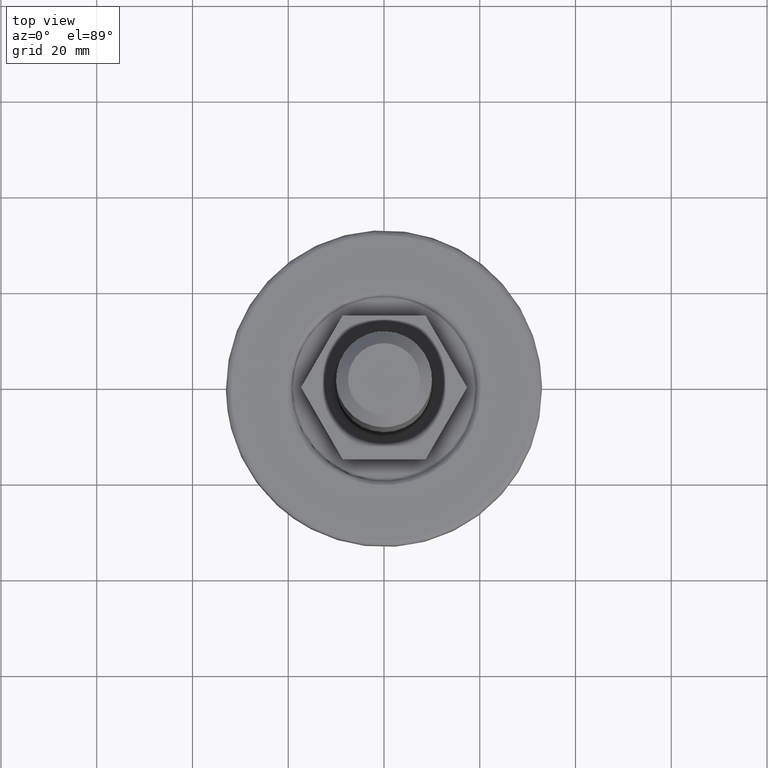
[diagram: clean part render]
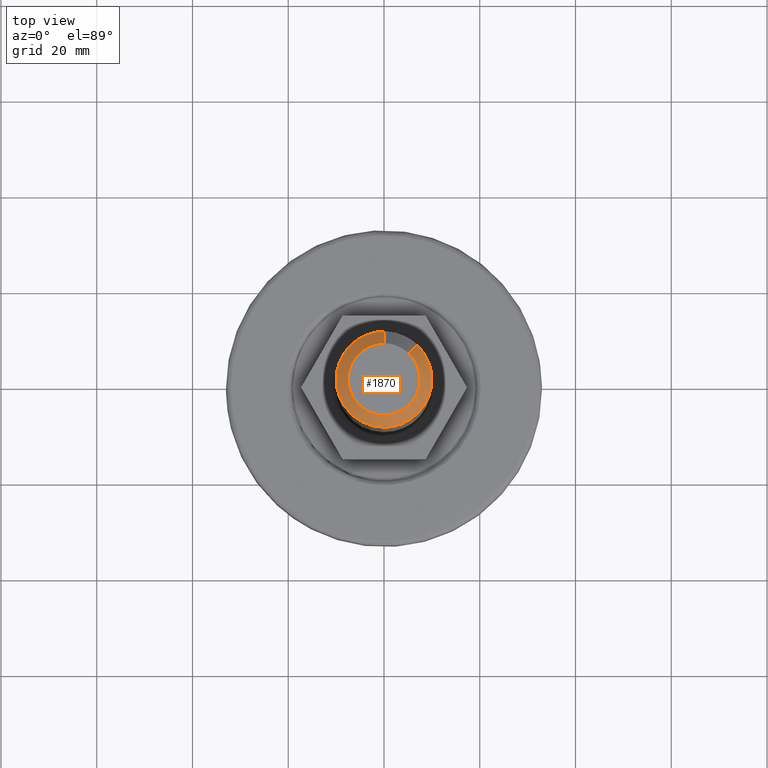
[diagram: same view with one face highlighted and labeled with its STEP entity id]
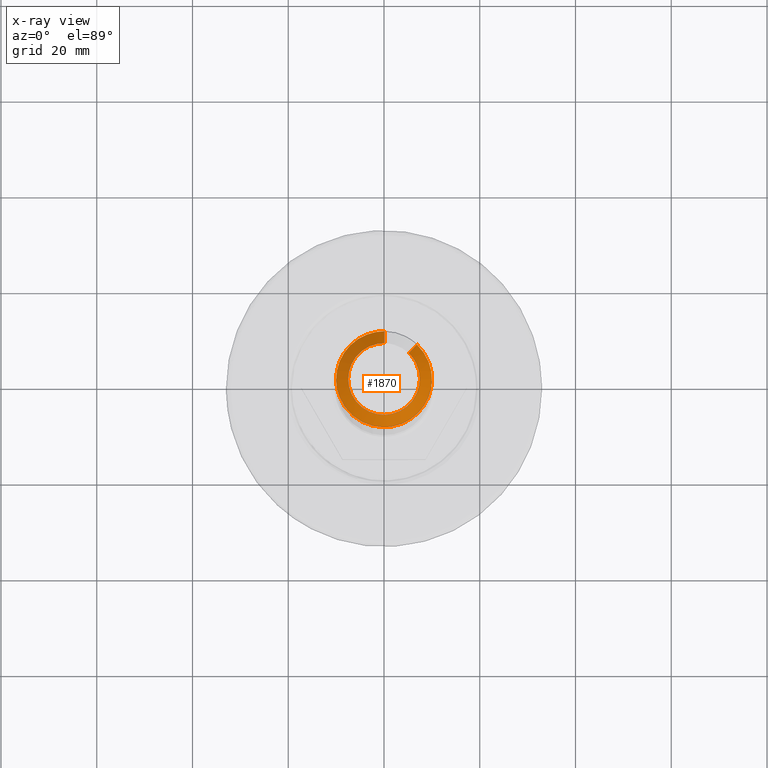
[diagram: x-ray of the same camera — body ghosted, the highlighted face saturated]
A machine part, top view. The second image highlights one B-rep face of the part: STEP entity #1870.
The next image is the same camera in x-ray: the body ghosted, the highlighted face saturated — about 0% of this face is hidden behind the body in this view.
In plain terms, the highlighted face is a freeform B-spline surface patch.
Its self-contained STEP definition (entity closure, byte-faithful):
#1700=CARTESIAN_POINT('',(5.129191868205468,5.385888694462097,121.062500000000010));
#1701=CARTESIAN_POINT('',(7.465369323917905,3.161055786042344,121.062500000000070));
#1702=CARTESIAN_POINT('',(7.437216802789756,-0.064903607769156,121.062500000000000));
#1703=CARTESIAN_POINT('',(7.372313195020600,-7.502120410558912,121.062500000000010));
#1704=CARTESIAN_POINT('',(-0.064903607769156,-7.437216802789756,121.062500000000000));
#1705=CARTESIAN_POINT('',(-7.502120410558912,-7.372313195020600,121.062500000000010));
#1706=CARTESIAN_POINT('',(-7.437216802789756,0.064903607769156,121.062500000000000));
#1707=CARTESIAN_POINT('',(-7.372313195020600,7.502120410558912,121.062500000000010));
#1708=CARTESIAN_POINT('',(0.064903607769156,7.437216802789756,121.062500000000000));
#1709=CARTESIAN_POINT('',(6.940572441830194,7.287922075846782,118.435937499999980));
#1710=CARTESIAN_POINT('',(10.101773910789007,4.277386621407338,118.435937500000020));
#1711=CARTESIAN_POINT('',(10.063679291338079,-0.087824398664104,118.435937499999990));
#1712=CARTESIAN_POINT('',(9.975854892673976,-10.151503690002183,118.435937499999980));
#1713=CARTESIAN_POINT('',(-0.087824398664104,-10.063679291338079,118.435937499999990));
#1714=CARTESIAN_POINT('',(-10.151503690002183,-9.975854892673976,118.435937499999980));
#1715=CARTESIAN_POINT('',(-10.063679291338079,0.087824398664104,118.435937499999990));
#1716=CARTESIAN_POINT('',(-9.975854892673976,10.151503690002183,118.435937499999980));
#1717=CARTESIAN_POINT('',(0.087824398664104,10.063679291338079,118.435937499999990));
#1725=(BOUNDED_SURFACE()B_SPLINE_SURFACE(2,1,((#1700,#1709),(#1701,#1710),(#1702,#1711),(#1703,#1712),(#1704,#1713),(#1705,#1714),(#1706,#1715),(#1707,#1716),(#1708,#1717)),.UNSPECIFIED.,.F.,.F.,.U.)B_SPLINE_SURFACE_WITH_KNOTS((3,2,2,2,3),(2,2),(0.0,8.670836054546653,25.345520774828671,42.020205495110687,58.694890215392718),(0.0,3.714520309920668),.UNSPECIFIED.)GEOMETRIC_REPRESENTATION_ITEM()RATIONAL_B_SPLINE_SURFACE(((0.853787705168325,0.853787705168325),(0.847695526217005,0.847695526217005),(1.0,1.0),(0.707106781186548,0.707106781186548),(1.0,1.0),(0.707106781186548,0.707106781186548),(1.0,1.0),(0.707106781186548,0.707106781186548),(1.0,1.0)))REPRESENTATION_ITEM('')SURFACE());
#1726=CARTESIAN_POINT('',(7.500000000000000,0.0,121.0));
#1727=VERTEX_POINT('',#1726);
#1728=CARTESIAN_POINT('',(5.172294320882055,5.431148263320713,121.0));
#1729=VERTEX_POINT('',#1728);
#1730=CARTESIAN_POINT('',(7.500000000000000,0.0,121.0));
#1731=CARTESIAN_POINT('',(7.500000000000000,3.214383358170244,120.999999999999940));
#1732=CARTESIAN_POINT('',(5.172294320882055,5.431148263320713,120.999999999999960));
#1740=(BOUNDED_CURVE()B_SPLINE_CURVE(2,(#1730,#1731,#1732),.UNSPECIFIED.,.F.,.U.)B_SPLINE_CURVE_WITH_KNOTS((3,3),(0.500000000000000,0.628682976150349),.UNSPECIFIED.)CURVE()GEOMETRIC_REPRESENTATION_ITEM()RATIONAL_B_SPLINE_CURVE((1.0,0.849238515635318,0.853680523245769))REPRESENTATION_ITEM(''));
#1741=EDGE_CURVE('',#1727,#1729,#1740,.T.);
#1742=ORIENTED_EDGE('',*,*,#1741,.F.);
#1743=CARTESIAN_POINT('',(-7.500000000000000,0.0,121.0));
#1744=VERTEX_POINT('',#1743);
#1745=CARTESIAN_POINT('',(-7.500000000000000,0.0,121.0));
#1746=CARTESIAN_POINT('',(-7.500000000000000,-7.500000000000000,121.0));
#1747=CARTESIAN_POINT('',(0.0,-7.500000000000000,121.0));
#1748=CARTESIAN_POINT('',(7.500000000000000,-7.500000000000000,121.0));
#1749=CARTESIAN_POINT('',(7.500000000000000,0.0,121.0));
#1757=(BOUNDED_CURVE()B_SPLINE_CURVE(2,(#1745,#1746,#1747,#1748,#1749),.UNSPECIFIED.,.F.,.U.)B_SPLINE_CURVE_WITH_KNOTS((3,2,3),(0.0,0.250000000000000,0.500000000000000),.UNSPECIFIED.)CURVE()GEOMETRIC_REPRESENTATION_ITEM()RATIONAL_B_SPLINE_CURVE((1.0,0.707106781186547,1.0,0.707106781186547,1.0))REPRESENTATION_ITEM(''));
#1758=EDGE_CURVE('',#1744,#1727,#1757,.T.);
#1759=ORIENTED_EDGE('',*,*,#1758,.F.);
#1760=CARTESIAN_POINT('',(0.065449016864621,7.499714423061231,120.999999999914610));
#1761=VERTEX_POINT('',#1760);
#1762=CARTESIAN_POINT('',(0.065449016864621,7.499714423061231,120.999999999914540));
#1763=CARTESIAN_POINT('',(0.032725131781369,7.500000000000000,121.000000000000040));
#1764=CARTESIAN_POINT('',(0.0,7.500000000000000,121.0));
#1765=CARTESIAN_POINT('',(-7.500000000000000,7.500000000000000,121.0));
#1766=CARTESIAN_POINT('',(-7.500000000000000,0.0,121.0));
#1774=(BOUNDED_CURVE()B_SPLINE_CURVE(2,(#1762,#1763,#1764,#1765,#1766),.UNSPECIFIED.,.F.,.U.)B_SPLINE_CURVE_WITH_KNOTS((3,2,3),(0.748460105635604,0.750000000000000,1.0),.UNSPECIFIED.)CURVE()GEOMETRIC_REPRESENTATION_ITEM()RATIONAL_B_SPLINE_CURVE((0.996414028032346,0.998195901531918,1.0,0.707106781186547,1.0))REPRESENTATION_ITEM(''));
#1775=EDGE_CURVE('',#1761,#1744,#1774,.T.);
#1776=ORIENTED_EDGE('',*,*,#1775,.F.);
#1777=CARTESIAN_POINT('',(0.087265355389125,9.999619230693483,118.499999999944710));
#1778=VERTEX_POINT('',#1777);
#1779=CARTESIAN_POINT('',(0.065449016864621,7.499714423061231,120.999999999914610));
#1780=CARTESIAN_POINT('',(0.087265355389125,9.999619230693483,118.499999999944710));
#1781=QUASI_UNIFORM_CURVE('',1,(#1779,#1780),.UNSPECIFIED.,.F.,.U.);
#1782=EDGE_CURVE('',#1761,#1778,#1781,.T.);
#1783=ORIENTED_EDGE('',*,*,#1782,.T.);
#1784=CARTESIAN_POINT('',(-10.0,0.0,118.500000000000000));
#1785=VERTEX_POINT('',#1784);
#1786=CARTESIAN_POINT('',(-10.0,0.0,118.500000000000000));
#1787=CARTESIAN_POINT('',(-10.000000000000002,10.000000000000002,118.500000000000000));
#1788=CARTESIAN_POINT('',(0.0,10.0,118.500000000000000));
#1789=CARTESIAN_POINT('',(0.043633508611914,10.000000000000002,118.499999999999960));
#1790=CARTESIAN_POINT('',(0.087265355389125,9.999619230693483,118.499999999944730));
#1798=(BOUNDED_CURVE()B_SPLINE_CURVE(2,(#1786,#1787,#1788,#1789,#1790),.UNSPECIFIED.,.F.,.U.)B_SPLINE_CURVE_WITH_KNOTS((3,2,3),(0.500000000000000,0.750000000000000,0.751539894349251),.UNSPECIFIED.)CURVE()GEOMETRIC_REPRESENTATION_ITEM()RATIONAL_B_SPLINE_CURVE((1.0,0.707106781186548,1.0,0.998195901549661,0.996414028067396))REPRESENTATION_ITEM(''));
#1799=EDGE_CURVE('',#1785,#1778,#1798,.T.);
#1800=ORIENTED_EDGE('',*,*,#1799,.F.);
#1801=CARTESIAN_POINT('',(-6.535372859406683,-7.568943227989572,118.500000000000000));
#1802=VERTEX_POINT('',#1801);
#1803=CARTESIAN_POINT('',(-6.535372859406727,-7.568943227989622,118.500000000000070));
#1804=CARTESIAN_POINT('',(-10.0,-4.577425191645294,118.500000000000010));
#1805=CARTESIAN_POINT('',(-10.0,0.0,118.500000000000000));
#1813=(BOUNDED_CURVE()B_SPLINE_CURVE(2,(#1803,#1804,#1805),.UNSPECIFIED.,.F.,.U.)B_SPLINE_CURVE_WITH_KNOTS((3,3),(0.363957641356964,0.500000000000000),.UNSPECIFIED.)CURVE()GEOMETRIC_REPRESENTATION_ITEM()RATIONAL_B_SPLINE_CURVE((0.854696224171070,0.840616462728268,1.0))REPRESENTATION_ITEM(''));
#1814=EDGE_CURVE('',#1802,#1785,#1813,.T.);
#1815=ORIENTED_EDGE('',*,*,#1814,.F.);
#1816=CARTESIAN_POINT('',(-0.261755488294605,-9.996573616202285,118.500000000000000));
#1817=VERTEX_POINT('',#1816);
#1818=CARTESIAN_POINT('',(-0.261755488294605,-9.996573616202285,118.500000000000060));
#1819=CARTESIAN_POINT('',(-3.832084699015951,-9.903086257262403,118.499999999999960));
#1820=CARTESIAN_POINT('',(-6.535372859406727,-7.568943227989622,118.500000000000070));
#1828=(BOUNDED_CURVE()B_SPLINE_CURVE(2,(#1818,#1819,#1820),.UNSPECIFIED.,.F.,.U.)B_SPLINE_CURVE_WITH_KNOTS((3,3),(0.254603061799192,0.363957641356964),.UNSPECIFIED.)CURVE()GEOMETRIC_REPRESENTATION_ITEM()RATIONAL_B_SPLINE_CURVE((0.989412943262184,0.866013922630645,0.854696224171070))REPRESENTATION_ITEM(''));
#1829=EDGE_CURVE('',#1817,#1802,#1828,.T.);
#1830=ORIENTED_EDGE('',*,*,#1829,.F.);
#1831=CARTESIAN_POINT('',(10.0,0.0,118.500000000000000));
#1832=VERTEX_POINT('',#1831);
#1833=CARTESIAN_POINT('',(10.0,0.0,118.500000000000000));
#1834=CARTESIAN_POINT('',(10.000000000000002,-10.000000000000002,118.500000000000000));
#1835=CARTESIAN_POINT('',(0.0,-10.0,118.500000000000000));
#1836=CARTESIAN_POINT('',(-0.130900169858422,-10.0,118.499999999999970));
#1837=CARTESIAN_POINT('',(-0.261755488294605,-9.996573616202285,118.500000000000060));
#1845=(BOUNDED_CURVE()B_SPLINE_CURVE(2,(#1833,#1834,#1835,#1836,#1837),.UNSPECIFIED.,.F.,.U.)B_SPLINE_CURVE_WITH_KNOTS((3,2,3),(0.0,0.250000000000000,0.254603061799192),.UNSPECIFIED.)CURVE()GEOMETRIC_REPRESENTATION_ITEM()RATIONAL_B_SPLINE_CURVE((1.0,0.707106781186548,1.0,0.994607177652950,0.989412943262184))REPRESENTATION_ITEM(''));
#1846=EDGE_CURVE('',#1832,#1817,#1845,.T.);
#1847=ORIENTED_EDGE('',*,*,#1846,.F.);
#1848=CARTESIAN_POINT('',(6.896392427850937,7.241531017753263,118.499999999999900));
#1849=VERTEX_POINT('',#1848);
#1850=CARTESIAN_POINT('',(6.896392427850937,7.241531017753262,118.499999999999940));
#1851=CARTESIAN_POINT('',(10.0,4.285844477547040,118.500000000000030));
#1852=CARTESIAN_POINT('',(10.0,0.0,118.500000000000000));
#1860=(BOUNDED_CURVE()B_SPLINE_CURVE(2,(#1850,#1851,#1852),.UNSPECIFIED.,.F.,.U.)B_SPLINE_CURVE_WITH_KNOTS((3,3),(0.871317023849989,1.0),.UNSPECIFIED.)CURVE()GEOMETRIC_REPRESENTATION_ITEM()RATIONAL_B_SPLINE_CURVE((0.853680523245746,0.849238515635715,1.0))REPRESENTATION_ITEM(''));
#1861=EDGE_CURVE('',#1849,#1832,#1860,.T.);
#1862=ORIENTED_EDGE('',*,*,#1861,.F.);
#1863=CARTESIAN_POINT('',(5.172294320882055,5.431148263320713,121.0));
#1864=CARTESIAN_POINT('',(6.896392427850937,7.241531017753263,118.499999999999900));
#1865=QUASI_UNIFORM_CURVE('',1,(#1863,#1864),.UNSPECIFIED.,.F.,.U.);
#1866=EDGE_CURVE('',#1729,#1849,#1865,.T.);
#1867=ORIENTED_EDGE('',*,*,#1866,.F.);
#1868=EDGE_LOOP('',(#1742,#1759,#1776,#1783,#1800,#1815,#1830,#1847,#1862,#1867));
#1869=FACE_OUTER_BOUND('',#1868,.T.);
#1870=ADVANCED_FACE('',(#1869),#1725,.T.);